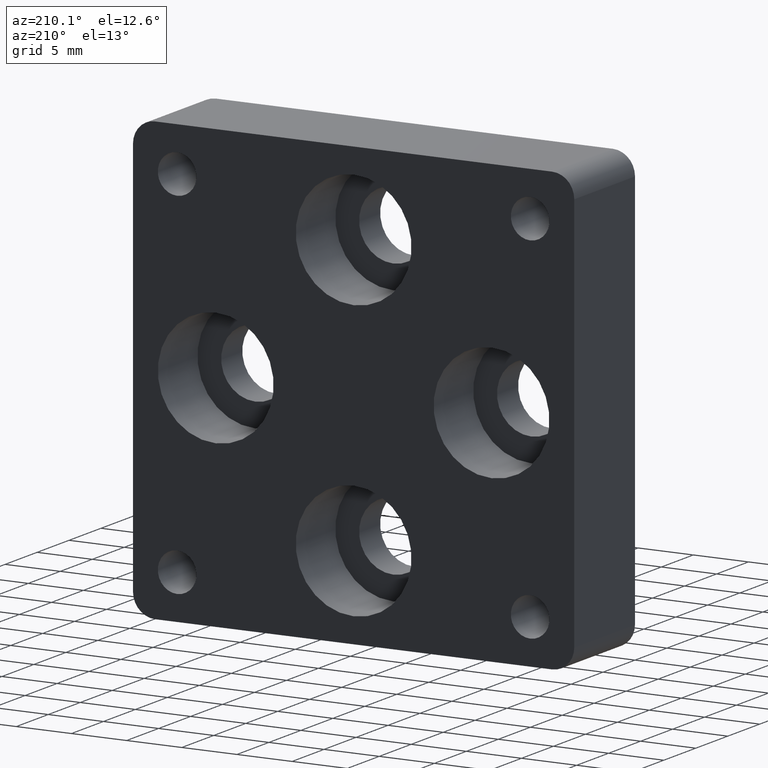
[diagram: clean part render]
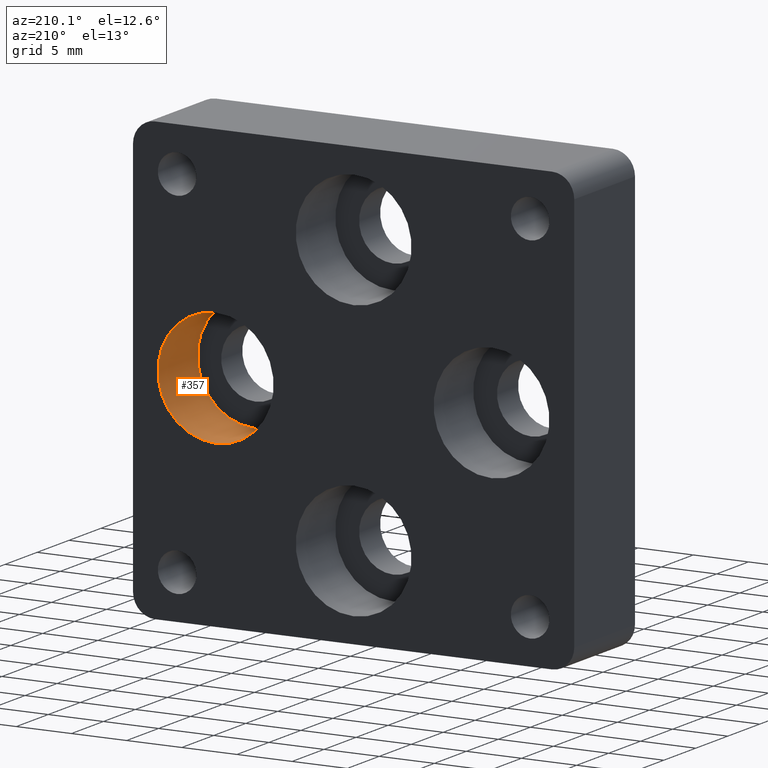
[diagram: same view with one face highlighted and labeled with its STEP entity id]
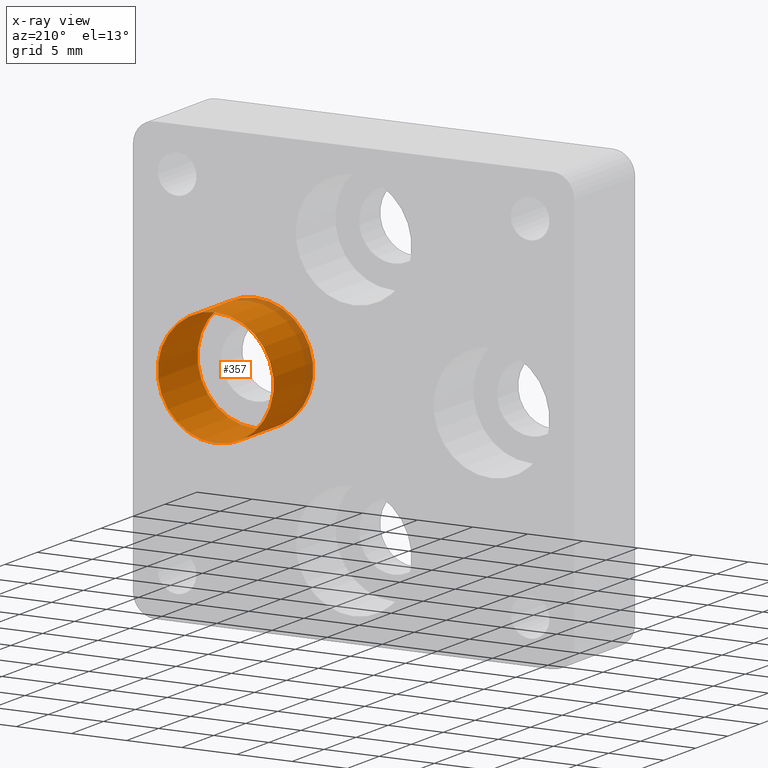
[diagram: x-ray of the same camera — body ghosted, the highlighted face saturated]
A machine part, auxiliary view. The second image highlights one B-rep face of the part: STEP entity #357.
The next image is the same camera in x-ray: the body ghosted, the highlighted face saturated — about 9% of this face is hidden behind the body in this view.
In plain terms, the highlighted cylindrical surface (bore or boss wall) has radius 5.25 mm, axis along (-0, 1, -0).
Its self-contained STEP definition (entity closure, byte-faithful):
#31 = CARTESIAN_POINT ( 'NONE',  ( 12.50000000000000178, 3.299999999999999822, -3.061616997868383043E-15 ) ) ;
#40 = DIRECTION ( 'NONE',  ( -0.000000000000000000, 1.000000000000000000, -0.000000000000000000 ) ) ;
#63 = VERTEX_POINT ( 'NONE', #445 ) ;
#89 = CYLINDRICAL_SURFACE ( 'NONE', #343, 5.249999999999998224 ) ;
#208 = AXIS2_PLACEMENT_3D ( 'NONE', #408, #543, #228 ) ;
#228 = DIRECTION ( 'NONE',  ( 0.000000000000000000, 0.000000000000000000, 1.000000000000000000 ) ) ;
#343 = AXIS2_PLACEMENT_3D ( 'NONE', #31, #40, #670 ) ;
#357 = ADVANCED_FACE ( 'NONE', ( #584, #646 ), #89, .F. ) ;
#368 = CARTESIAN_POINT ( 'NONE',  ( 12.50000000000000178, 3.299999999999999822, -3.061616997868383043E-15 ) ) ;
#398 = EDGE_CURVE ( 'NONE', #63, #63, #741, .T. ) ;
#408 = CARTESIAN_POINT ( 'NONE',  ( 12.50000000000000178, 9.500000000000000000, -3.061616997868383043E-15 ) ) ;
#436 = ORIENTED_EDGE ( 'NONE', *, *, #477, .F. ) ;
#445 = CARTESIAN_POINT ( 'NONE',  ( 12.50000000000000178, 9.500000000000000000, 5.249999999999995559 ) ) ;
#456 = ORIENTED_EDGE ( 'NONE', *, *, #398, .T. ) ;
#477 = EDGE_CURVE ( 'NONE', #563, #563, #660, .T. ) ;
#521 = EDGE_LOOP ( 'NONE', ( #456 ) ) ;
#543 = DIRECTION ( 'NONE',  ( 0.000000000000000000, 1.000000000000000000, 0.000000000000000000 ) ) ;
#559 = CARTESIAN_POINT ( 'NONE',  ( 12.50000000000000178, 3.299999999999999822, 5.249999999999995559 ) ) ;
#563 = VERTEX_POINT ( 'NONE', #559 ) ;
#578 = AXIS2_PLACEMENT_3D ( 'NONE', #368, #743, #619 ) ;
#584 = FACE_OUTER_BOUND ( 'NONE', #766, .T. ) ;
#619 = DIRECTION ( 'NONE',  ( 0.000000000000000000, 0.000000000000000000, 1.000000000000000000 ) ) ;
#646 = FACE_OUTER_BOUND ( 'NONE', #521, .T. ) ;
#660 = CIRCLE ( 'NONE', #578, 5.249999999999998224 ) ;
#670 = DIRECTION ( 'NONE',  ( 0.000000000000000000, 0.000000000000000000, 1.000000000000000000 ) ) ;
#741 = CIRCLE ( 'NONE', #208, 5.249999999999998224 ) ;
#743 = DIRECTION ( 'NONE',  ( 0.000000000000000000, 1.000000000000000000, 0.000000000000000000 ) ) ;
#766 = EDGE_LOOP ( 'NONE', ( #436 ) ) ;